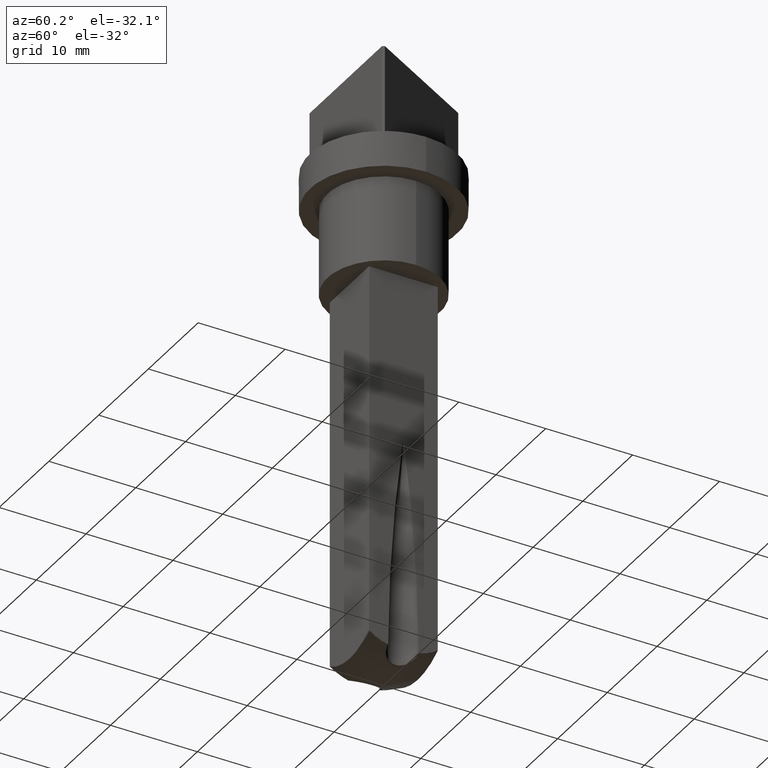
[diagram: clean part render]
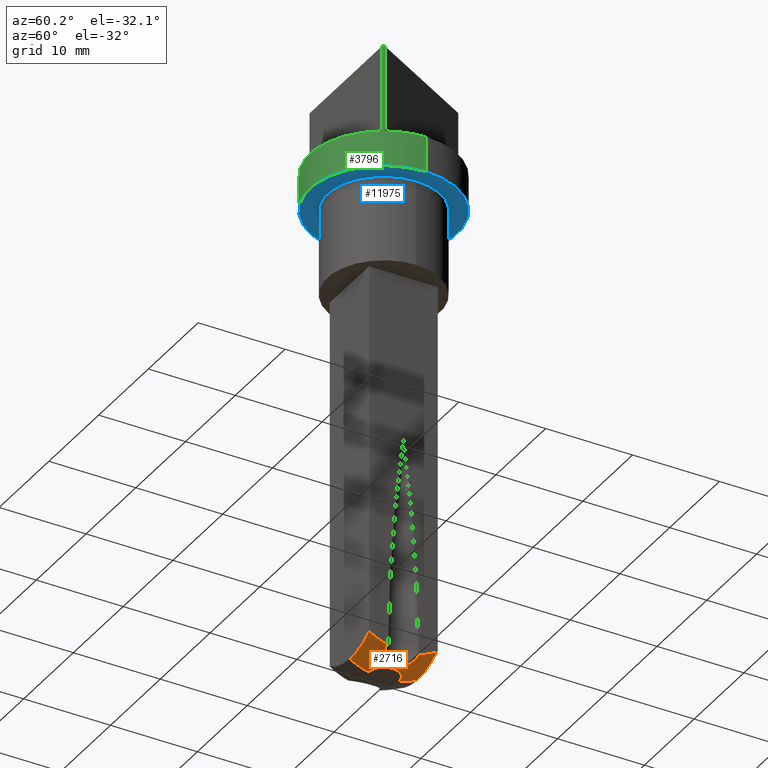
[diagram: same view with three faces highlighted in distinct colors, each labeled with its STEP entity id]
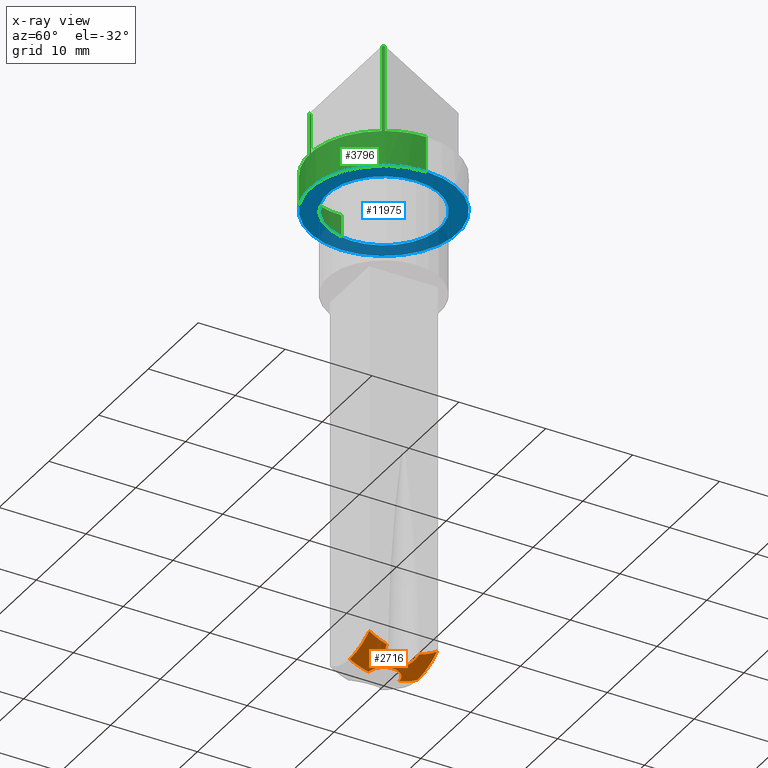
[diagram: x-ray of the same camera — body ghosted, the three highlighted faces saturated]
A machine part, auxiliary view with three faces highlighted in distinct colors.
The next image is the same camera in x-ray (body ghosted, the three faces saturated) — at least one of them is partly hidden behind the body in this view.
Their STEP definitions:

[orange] entity #2716 — the highlighted spherical surface has radius 8 mm.
#150 = CARTESIAN_POINT ( 'NONE',  ( 2.180382111232736175, -0.5106978637003862787, -51.87817661675446601 ) ) ;
#489 = ORIENTED_EDGE ( 'NONE', *, *, #5356, .T. ) ;
#516 = CIRCLE ( 'NONE', #7930, 6.985690503838126730 ) ;
#777 = VERTEX_POINT ( 'NONE', #13606 ) ;
#912 = CARTESIAN_POINT ( 'NONE',  ( 0.000000000000000000, 1.760904488448767902, -51.99754743668351153 ) ) ;
#1030 = DIRECTION ( 'NONE',  ( 1.000000000000000000, 0.000000000000000000, 0.000000000000000000 ) ) ;
#1243 = CARTESIAN_POINT ( 'NONE',  ( 2.328785630369385462, -0.8552987283188187018, -51.80042948224190980 ) ) ;
#1275 = EDGE_CURVE ( 'NONE', #777, #8591, #13905, .T. ) ;
#1290 = CARTESIAN_POINT ( 'NONE',  ( 2.858648834088266089, 1.488995507350840963, -51.51680427132578188 ) ) ;
#1334 = CARTESIAN_POINT ( 'NONE',  ( 2.857054322347832187, -1.502190820968764662, -51.51805132428641798 ) ) ;
#1505 = VERTEX_POINT ( 'NONE', #12048 ) ;
#1552 = CARTESIAN_POINT ( 'NONE',  ( 0.000000000000000000, 0.000000000000000000, -44.19375250200199190 ) ) ;
#1713 = CARTESIAN_POINT ( 'NONE',  ( 0.000000000000000000, 0.000000000000000000, -44.19375250200199190 ) ) ;
#1865 = DIRECTION ( 'NONE',  ( -0.000000000000000000, -1.000000000000000000, -0.000000000000000000 ) ) ;
#2019 = EDGE_CURVE ( 'NONE', #3425, #1505, #13856, .T. ) ;
#2080 = CARTESIAN_POINT ( 'NONE',  ( 2.138746943988174998, 0.2469376868379203338, -51.89965124968365728 ) ) ;
#2311 = DIRECTION ( 'NONE',  ( 1.000000000000000000, 0.000000000000000000, 0.000000000000000000 ) ) ;
#2360 = AXIS2_PLACEMENT_3D ( 'NONE', #7737, #4524, #2311 ) ;
#2371 = CARTESIAN_POINT ( 'NONE',  ( 2.766480473709147958, 1.414033024937340954, -51.56689301520776780 ) ) ;
#2469 = CARTESIAN_POINT ( 'NONE',  ( 2.602820174154429012, -1.252921326746087916, -51.65509874550207314 ) ) ;
#2586 = ORIENTED_EDGE ( 'NONE', *, *, #6862, .T. ) ;
#2716 = ADVANCED_FACE ( 'NONE', ( #8545 ), #5253, .T. ) ;
#2720 = CARTESIAN_POINT ( 'NONE',  ( 1.760904488448767680, 2.156486045382990820E-16, -51.99754743668351153 ) ) ;
#2984 = CARTESIAN_POINT ( 'NONE',  ( 0.000000000000000000, 3.898734177215189334, -44.19375250200199190 ) ) ;
#3013 = VERTEX_POINT ( 'NONE', #2720 ) ;
#3261 = CARTESIAN_POINT ( 'NONE',  ( 3.462106613809702527, 1.806592903148885876, -51.18052838657785486 ) ) ;
#3388 = AXIS2_PLACEMENT_3D ( 'NONE', #14183, #14135, #13974 ) ;
#3425 = VERTEX_POINT ( 'NONE', #12120 ) ;
#3427 = ORIENTED_EDGE ( 'NONE', *, *, #9251, .T. ) ;
#4012 = VERTEX_POINT ( 'NONE', #8293 ) ;
#4115 = AXIS2_PLACEMENT_3D ( 'NONE', #8945, #4488, #4398 ) ;
#4229 = EDGE_LOOP ( 'NONE', ( #6483, #13667, #9284, #2586, #11980, #9423, #13295, #3427, #489 ) ) ;
#4398 = DIRECTION ( 'NONE',  ( 0.000000000000000000, 0.000000000000000000, 1.000000000000000000 ) ) ;
#4488 = DIRECTION ( 'NONE',  ( -1.000000000000000000, -0.000000000000000000, -0.000000000000000000 ) ) ;
#4524 = DIRECTION ( 'NONE',  ( 0.000000000000000000, 0.000000000000000000, 1.000000000000000000 ) ) ;
#4584 = CARTESIAN_POINT ( 'NONE',  ( 3.464883654189576667, -1.807449611628403119, -51.17894453782694342 ) ) ;
#4633 = CARTESIAN_POINT ( 'NONE',  ( 2.513642876631042800, 1.164127101772614914, -51.70313504104576197 ) ) ;
#4682 = CARTESIAN_POINT ( 'NONE',  ( 2.226685290934127259, 0.6163339328914482218, -51.85391123496365395 ) ) ;
#5202 = DIRECTION ( 'NONE',  ( -1.000000000000000000, 0.000000000000000000, 0.000000000000000000 ) ) ;
#5253 = SPHERICAL_SURFACE ( 'NONE', #7509, 8.000000000000000000 ) ;
#5356 = EDGE_CURVE ( 'NONE', #9273, #1505, #10771, .T. ) ;
#5424 = CARTESIAN_POINT ( 'NONE',  ( 2.188706809074948190, 0.4943208755018275169, -51.87368099106187458 ) ) ;
#5526 = CARTESIAN_POINT ( 'NONE',  ( 3.898734177215189334, -3.898734177215188446, -49.99028108649361002 ) ) ;
#5701 = CARTESIAN_POINT ( 'NONE',  ( 3.898734177215188890, 1.867170734593343262, -50.92528615068059850 ) ) ;
#5751 = CARTESIAN_POINT ( 'NONE',  ( 3.679317725592032406, -1.856048930844125922, -51.05545154406537023 ) ) ;
#6483 = ORIENTED_EDGE ( 'NONE', *, *, #2019, .F. ) ;
#6518 = VERTEX_POINT ( 'NONE', #7235 ) ;
#6520 = CARTESIAN_POINT ( 'NONE',  ( 0.000000000000000000, 0.000000000000000000, -44.19375250200199190 ) ) ;
#6650 = CARTESIAN_POINT ( 'NONE',  ( 3.898734177215189334, -1.867170734593354364, -50.92528615068059850 ) ) ;
#6862 = EDGE_CURVE ( 'NONE', #9159, #4012, #14171, .T. ) ;
#6875 = CARTESIAN_POINT ( 'NONE',  ( 3.898734177215188890, 0.000000000000000000, -44.19375250200199190 ) ) ;
#7231 = CIRCLE ( 'NONE', #2360, 1.760904488448767902 ) ;
#7235 = CARTESIAN_POINT ( 'NONE',  ( 3.898734177215189334, 3.898734177215190666, -49.99028108649361002 ) ) ;
#7509 = AXIS2_PLACEMENT_3D ( 'NONE', #1713, #5202, #14108 ) ;
#7657 = CARTESIAN_POINT ( 'NONE',  ( 2.127567062258587161, -0.2618703335249066289, -51.90544013229916942 ) ) ;
#7737 = CARTESIAN_POINT ( 'NONE',  ( 0.000000000000000000, 0.000000000000000000, -51.99754743668351153 ) ) ;
#7930 = AXIS2_PLACEMENT_3D ( 'NONE', #2984, #1865, #14003 ) ;
#8066 = DIRECTION ( 'NONE',  ( 0.000000000000000000, 0.000000000000000000, 1.000000000000000000 ) ) ;
#8293 = CARTESIAN_POINT ( 'NONE',  ( 0.000000000000000000, 3.898734177215189778, -51.17944300584012041 ) ) ;
#8545 = FACE_OUTER_BOUND ( 'NONE', #4229, .T. ) ;
#8591 = VERTEX_POINT ( 'NONE', #6650 ) ;
#8711 = CARTESIAN_POINT ( 'NONE',  ( 3.678958428216413612, 1.856030718741625618, -51.05566469163883170 ) ) ;
#8744 = DIRECTION ( 'NONE',  ( 0.000000000000000000, 0.000000000000000000, -1.000000000000000000 ) ) ;
#8945 = CARTESIAN_POINT ( 'NONE',  ( 3.898734177215189334, 0.000000000000000000, -44.19375250200199190 ) ) ;
#8987 = CARTESIAN_POINT ( 'NONE',  ( 2.388202015132297795, -0.9619150511319982666, -51.76917486629923104 ) ) ;
#9038 = CARTESIAN_POINT ( 'NONE',  ( 3.898734177215189334, -1.867170734593354364, -50.92528615068059850 ) ) ;
#9087 = EDGE_CURVE ( 'NONE', #3013, #9159, #9491, .T. ) ;
#9159 = VERTEX_POINT ( 'NONE', #912 ) ;
#9194 = AXIS2_PLACEMENT_3D ( 'NONE', #11386, #10227, #8066 ) ;
#9251 = EDGE_CURVE ( 'NONE', #8591, #9273, #10358, .T. ) ;
#9273 = VERTEX_POINT ( 'NONE', #5526 ) ;
#9284 = ORIENTED_EDGE ( 'NONE', *, *, #9087, .T. ) ;
#9301 = DIRECTION ( 'NONE',  ( -1.000000000000000000, 1.224646799147353207E-16, 0.000000000000000000 ) ) ;
#9423 = ORIENTED_EDGE ( 'NONE', *, *, #13628, .T. ) ;
#9491 = CIRCLE ( 'NONE', #3388, 1.760904488448767902 ) ;
#9592 = AXIS2_PLACEMENT_3D ( 'NONE', #6875, #13406, #11318 ) ;
#9736 = EDGE_CURVE ( 'NONE', #3425, #3013, #7231, .T. ) ;
#10106 = CARTESIAN_POINT ( 'NONE',  ( 2.524757507187894046, -1.160313752101143736, -51.69675756362591557 ) ) ;
#10227 = DIRECTION ( 'NONE',  ( 0.000000000000000000, 1.000000000000000000, 0.000000000000000000 ) ) ;
#10358 = CIRCLE ( 'NONE', #4115, 6.985690503838126730 ) ;
#10409 = CIRCLE ( 'NONE', #9592, 6.985690503838126730 ) ;
#10771 = CIRCLE ( 'NONE', #9194, 6.985690503838126730 ) ;
#10938 = CARTESIAN_POINT ( 'NONE',  ( 3.050156271661538021, 1.617502458060467996, -51.41152920333833976 ) ) ;
#11318 = DIRECTION ( 'NONE',  ( 0.000000000000000000, 0.000000000000000000, 1.000000000000000000 ) ) ;
#11386 = CARTESIAN_POINT ( 'NONE',  ( 0.000000000000000000, -3.898734177215188001, -44.19375250200199190 ) ) ;
#11658 = DIRECTION ( 'NONE',  ( -1.224646799147353207E-16, -1.000000000000000000, 0.000000000000000000 ) ) ;
#11738 = AXIS2_PLACEMENT_3D ( 'NONE', #1552, #9301, #11658 ) ;
#11816 = EDGE_CURVE ( 'NONE', #4012, #6518, #516, .T. ) ;
#11980 = ORIENTED_EDGE ( 'NONE', *, *, #11816, .T. ) ;
#12048 = CARTESIAN_POINT ( 'NONE',  ( -4.774572330852970025E-16, -3.898734177215188001, -51.17944300584012041 ) ) ;
#12120 = CARTESIAN_POINT ( 'NONE',  ( -4.465824982899612627E-16, -1.760904488448767902, -51.99754743668351153 ) ) ;
#12260 = CARTESIAN_POINT ( 'NONE',  ( 3.150171057693808674, 1.671852031501773750, -51.35598556426180750 ) ) ;
#12351 = CARTESIAN_POINT ( 'NONE',  ( 2.371893988486821758, 0.9589285037936146061, -51.77785969371883112 ) ) ;
#13062 = AXIS2_PLACEMENT_3D ( 'NONE', #6520, #1030, #8744 ) ;
#13116 = CARTESIAN_POINT ( 'NONE',  ( 2.126248505399627842, 0.1212697273930086750, -51.90612385537448858 ) ) ;
#13295 = ORIENTED_EDGE ( 'NONE', *, *, #1275, .T. ) ;
#13406 = DIRECTION ( 'NONE',  ( -1.000000000000000000, -0.000000000000000000, -0.000000000000000000 ) ) ;
#13440 = CARTESIAN_POINT ( 'NONE',  ( 3.048140487968403090, -1.628118796686945702, -51.41339718595149577 ) ) ;
#13606 = CARTESIAN_POINT ( 'NONE',  ( 3.898734177215188890, 1.867170734593343262, -50.92528615068059850 ) ) ;
#13628 = EDGE_CURVE ( 'NONE', #6518, #777, #10409, .T. ) ;
#13667 = ORIENTED_EDGE ( 'NONE', *, *, #9736, .T. ) ;
#13856 = CIRCLE ( 'NONE', #11738, 8.000000000000000000 ) ;
#13905 = B_SPLINE_CURVE_WITH_KNOTS ( 'NONE', 3,
 ( #5701, #8711, #3261, #12260, #10938, #1290, #2371, #4633, #12351, #4682, #5424, #2080, #13116, #7657, #150, #1243, #8987, #10106, #2469, #1334, #13440, #4584, #5751, #9038 ),
 .UNSPECIFIED., .F., .F.,
 ( 4, 2, 2, 2, 2, 2, 2, 2, 2, 2, 2, 4 ),
 ( 0.000000000000000000, 0.0007595803590064422383, 0.001139370538509658533, 0.001519160718012875153, 0.002278741077019307525, 0.002658531256522525879, 0.003038321436025744234, 0.003797901795032180942, 0.004177691974535396695, 0.004557482154038612447, 0.005317062513045043085, 0.006076642872051474589 ),
 .UNSPECIFIED. ) ;
#13974 = DIRECTION ( 'NONE',  ( 1.000000000000000000, 0.000000000000000000, 0.000000000000000000 ) ) ;
#14003 = DIRECTION ( 'NONE',  ( 0.000000000000000000, 0.000000000000000000, -1.000000000000000000 ) ) ;
#14108 = DIRECTION ( 'NONE',  ( 0.000000000000000000, 1.000000000000000000, 0.000000000000000000 ) ) ;
#14135 = DIRECTION ( 'NONE',  ( 0.000000000000000000, 0.000000000000000000, 1.000000000000000000 ) ) ;
#14171 = CIRCLE ( 'NONE', #13062, 8.000000000000000000 ) ;
#14183 = CARTESIAN_POINT ( 'NONE',  ( 0.000000000000000000, 0.000000000000000000, -51.99754743668351153 ) ) ;

[blue] entity #11975 — the highlighted planar face has unit normal (0, 0, -1).
#409 = VERTEX_POINT ( 'NONE', #5009 ) ;
#773 = CARTESIAN_POINT ( 'NONE',  ( -8.499999999999996447, 0.000000000000000000, 2.900000000000001243 ) ) ;
#896 = VERTEX_POINT ( 'NONE', #11709 ) ;
#1481 = DIRECTION ( 'NONE',  ( 1.000000000000000000, 0.000000000000000000, 0.000000000000000000 ) ) ;
#1675 = CIRCLE ( 'NONE', #7536, 8.499999999999996447 ) ;
#1718 = EDGE_CURVE ( 'NONE', #8743, #896, #4394, .T. ) ;
#2209 = EDGE_CURVE ( 'NONE', #10375, #409, #11649, .T. ) ;
#2269 = EDGE_LOOP ( 'NONE', ( #13894, #2746 ) ) ;
#2746 = ORIENTED_EDGE ( 'NONE', *, *, #1718, .T. ) ;
#2996 = ORIENTED_EDGE ( 'NONE', *, *, #2209, .F. ) ;
#3007 = DIRECTION ( 'NONE',  ( 1.000000000000000000, 0.000000000000000000, 0.000000000000000000 ) ) ;
#4375 = DIRECTION ( 'NONE',  ( 0.000000000000000000, 0.000000000000000000, -1.000000000000000000 ) ) ;
#4394 = CIRCLE ( 'NONE', #7107, 6.500000000000000000 ) ;
#4670 = EDGE_CURVE ( 'NONE', #409, #10375, #1675, .T. ) ;
#4860 = CARTESIAN_POINT ( 'NONE',  ( 0.000000000000000000, 0.000000000000000000, 2.900000000000000799 ) ) ;
#5009 = CARTESIAN_POINT ( 'NONE',  ( 8.499999999999996447, 1.040949779275249943E-15, 2.900000000000001243 ) ) ;
#5342 = CARTESIAN_POINT ( 'NONE',  ( -6.500000000000000000, 7.960204194457795477E-16, 2.900000000000000799 ) ) ;
#6048 = DIRECTION ( 'NONE',  ( 1.000000000000000000, 0.000000000000000000, 0.000000000000000000 ) ) ;
#7107 = AXIS2_PLACEMENT_3D ( 'NONE', #4860, #8115, #1481 ) ;
#7245 = EDGE_LOOP ( 'NONE', ( #2996, #7586 ) ) ;
#7536 = AXIS2_PLACEMENT_3D ( 'NONE', #12650, #10401, #6048 ) ;
#7582 = FACE_OUTER_BOUND ( 'NONE', #7245, .T. ) ;
#7584 = PLANE ( 'NONE',  #12085 ) ;
#7586 = ORIENTED_EDGE ( 'NONE', *, *, #4670, .F. ) ;
#8115 = DIRECTION ( 'NONE',  ( -0.000000000000000000, -0.000000000000000000, 1.000000000000000000 ) ) ;
#8222 = AXIS2_PLACEMENT_3D ( 'NONE', #9959, #13388, #10137 ) ;
#8743 = VERTEX_POINT ( 'NONE', #5342 ) ;
#9777 = CARTESIAN_POINT ( 'NONE',  ( 0.000000000000000000, 0.000000000000000000, 2.900000000000001243 ) ) ;
#9959 = CARTESIAN_POINT ( 'NONE',  ( 0.000000000000000000, 0.000000000000000000, 2.900000000000000799 ) ) ;
#10007 = AXIS2_PLACEMENT_3D ( 'NONE', #9777, #10884, #3007 ) ;
#10137 = DIRECTION ( 'NONE',  ( 1.000000000000000000, 0.000000000000000000, 0.000000000000000000 ) ) ;
#10375 = VERTEX_POINT ( 'NONE', #773 ) ;
#10401 = DIRECTION ( 'NONE',  ( -0.000000000000000000, -0.000000000000000000, 1.000000000000000000 ) ) ;
#10884 = DIRECTION ( 'NONE',  ( -0.000000000000000000, -0.000000000000000000, 1.000000000000000000 ) ) ;
#11649 = CIRCLE ( 'NONE', #10007, 8.499999999999996447 ) ;
#11709 = CARTESIAN_POINT ( 'NONE',  ( 6.500000000000000000, 0.000000000000000000, 2.900000000000000799 ) ) ;
#11975 = ADVANCED_FACE ( 'NONE', ( #12273, #7582 ), #7584, .T. ) ;
#12055 = DIRECTION ( 'NONE',  ( -1.000000000000000000, 0.000000000000000000, -0.000000000000000000 ) ) ;
#12085 = AXIS2_PLACEMENT_3D ( 'NONE', #14256, #4375, #12055 ) ;
#12273 = FACE_BOUND ( 'NONE', #2269, .T. ) ;
#12650 = CARTESIAN_POINT ( 'NONE',  ( 0.000000000000000000, 0.000000000000000000, 2.900000000000001243 ) ) ;
#13388 = DIRECTION ( 'NONE',  ( -0.000000000000000000, -0.000000000000000000, 1.000000000000000000 ) ) ;
#13634 = CIRCLE ( 'NONE', #8222, 6.500000000000000000 ) ;
#13894 = ORIENTED_EDGE ( 'NONE', *, *, #14018, .T. ) ;
#14018 = EDGE_CURVE ( 'NONE', #896, #8743, #13634, .T. ) ;
#14256 = CARTESIAN_POINT ( 'NONE',  ( 0.000000000000000000, 8.499999999999996447, 2.900000000000000799 ) ) ;

[green] entity #3796 — the highlighted cylindrical surface (partial cylindrical patch) has radius 8.5 mm, axis along (-0, -0, -1).
#267 = EDGE_CURVE ( 'NONE', #13000, #11024, #3907, .T. ) ;
#409 = VERTEX_POINT ( 'NONE', #5009 ) ;
#474 = CARTESIAN_POINT ( 'NONE',  ( -7.431194021884498291, -4.126421622799602673, 17.00000000000000000 ) ) ;
#595 = CARTESIAN_POINT ( 'NONE',  ( 0.000000000000000000, 0.000000000000000000, 17.00000000000000000 ) ) ;
#773 = CARTESIAN_POINT ( 'NONE',  ( -8.499999999999996447, 0.000000000000000000, 2.900000000000001243 ) ) ;
#883 = EDGE_CURVE ( 'NONE', #8469, #6393, #13543, .T. ) ;
#889 = LINE ( 'NONE', #11414, #3500 ) ;
#1009 = EDGE_CURVE ( 'NONE', #10224, #3924, #5460, .T. ) ;
#1404 = VERTEX_POINT ( 'NONE', #8533 ) ;
#1447 = AXIS2_PLACEMENT_3D ( 'NONE', #595, #2924, #5036 ) ;
#1586 = LINE ( 'NONE', #10329, #7135 ) ;
#1763 = FACE_OUTER_BOUND ( 'NONE', #7748, .T. ) ;
#1915 = VERTEX_POINT ( 'NONE', #12337 ) ;
#2005 = ORIENTED_EDGE ( 'NONE', *, *, #1009, .F. ) ;
#2084 = CARTESIAN_POINT ( 'NONE',  ( -7.289182963012112104, -4.372391992003230143, 22.00000000000000000 ) ) ;
#2209 = EDGE_CURVE ( 'NONE', #10375, #409, #11649, .T. ) ;
#2216 = DIRECTION ( 'NONE',  ( 1.000000000000000000, 0.000000000000000000, 0.000000000000000000 ) ) ;
#2724 = CARTESIAN_POINT ( 'NONE',  ( 0.000000000000000000, 0.000000000000000000, 17.00000000000000000 ) ) ;
#2738 = CARTESIAN_POINT ( 'NONE',  ( -7.289182963012112104, -4.372391992003230143, 17.00000000000000000 ) ) ;
#2903 = ORIENTED_EDGE ( 'NONE', *, *, #7192, .T. ) ;
#2924 = DIRECTION ( 'NONE',  ( -0.000000000000000000, -0.000000000000000000, -1.000000000000000000 ) ) ;
#3007 = DIRECTION ( 'NONE',  ( 1.000000000000000000, 0.000000000000000000, 0.000000000000000000 ) ) ;
#3122 = DIRECTION ( 'NONE',  ( 1.000000000000000000, 0.000000000000000000, 0.000000000000000000 ) ) ;
#3272 = EDGE_CURVE ( 'NONE', #10949, #1915, #5433, .T. ) ;
#3500 = VECTOR ( 'NONE', #4887, 1000.000000000000000 ) ;
#3625 = ORIENTED_EDGE ( 'NONE', *, *, #883, .T. ) ;
#3785 = LINE ( 'NONE', #2084, #8818 ) ;
#3796 = ADVANCED_FACE ( 'NONE', ( #1763 ), #11785, .T. ) ;
#3907 = CIRCLE ( 'NONE', #12557, 8.500000000000000000 ) ;
#3924 = VERTEX_POINT ( 'NONE', #11326 ) ;
#4194 = DIRECTION ( 'NONE',  ( 0.000000000000000000, 0.000000000000000000, 1.000000000000000000 ) ) ;
#4218 = DIRECTION ( 'NONE',  ( 0.000000000000000000, 0.000000000000000000, 1.000000000000000000 ) ) ;
#4270 = CARTESIAN_POINT ( 'NONE',  ( 0.000000000000000000, 0.000000000000000000, 7.000000000000000000 ) ) ;
#4348 = CIRCLE ( 'NONE', #6553, 8.500000000000000000 ) ;
#4613 = AXIS2_PLACEMENT_3D ( 'NONE', #4270, #4218, #3122 ) ;
#4713 = EDGE_CURVE ( 'NONE', #1404, #10949, #12388, .T. ) ;
#4887 = DIRECTION ( 'NONE',  ( -0.000000000000000000, -0.000000000000000000, -1.000000000000000000 ) ) ;
#4933 = CARTESIAN_POINT ( 'NONE',  ( -8.500000000000000000, 0.000000000000000000, 7.000000000000000000 ) ) ;
#5009 = CARTESIAN_POINT ( 'NONE',  ( 8.499999999999996447, 1.040949779275249943E-15, 2.900000000000001243 ) ) ;
#5036 = DIRECTION ( 'NONE',  ( -1.000000000000000000, 0.000000000000000000, 0.000000000000000000 ) ) ;
#5340 = EDGE_CURVE ( 'NONE', #13000, #1404, #6088, .T. ) ;
#5349 = CARTESIAN_POINT ( 'NONE',  ( 7.431194021884501844, -4.126421622799598232, 7.000000000000000000 ) ) ;
#5371 = CARTESIAN_POINT ( 'NONE',  ( 0.000000000000000000, 0.000000000000000000, 7.000000000000000000 ) ) ;
#5433 = LINE ( 'NONE', #9372, #13507 ) ;
#5460 = CIRCLE ( 'NONE', #4613, 8.500000000000000000 ) ;
#5631 = CARTESIAN_POINT ( 'NONE',  ( 7.289182963012113881, -4.372391992003228367, 17.00000000000000000 ) ) ;
#5693 = DIRECTION ( 'NONE',  ( 0.000000000000000000, 0.000000000000000000, 1.000000000000000000 ) ) ;
#5888 = EDGE_CURVE ( 'NONE', #6393, #3924, #889, .T. ) ;
#6033 = AXIS2_PLACEMENT_3D ( 'NONE', #11101, #13661, #9125 ) ;
#6088 = LINE ( 'NONE', #12296, #6267 ) ;
#6267 = VECTOR ( 'NONE', #5693, 1000.000000000000000 ) ;
#6393 = VERTEX_POINT ( 'NONE', #474 ) ;
#6553 = AXIS2_PLACEMENT_3D ( 'NONE', #14121, #4194, #2216 ) ;
#6688 = VERTEX_POINT ( 'NONE', #11491 ) ;
#6927 = ORIENTED_EDGE ( 'NONE', *, *, #9123, .T. ) ;
#7113 = CARTESIAN_POINT ( 'NONE',  ( 8.500000000000000000, 1.040949779275250140E-15, 7.000000000000000000 ) ) ;
#7135 = VECTOR ( 'NONE', #13529, 1000.000000000000000 ) ;
#7192 = EDGE_CURVE ( 'NONE', #10224, #10375, #11947, .T. ) ;
#7263 = ORIENTED_EDGE ( 'NONE', *, *, #5888, .T. ) ;
#7341 = DIRECTION ( 'NONE',  ( -0.000000000000000000, -0.000000000000000000, -1.000000000000000000 ) ) ;
#7748 = EDGE_LOOP ( 'NONE', ( #9004, #11398, #13395, #9758, #12419, #10618, #6927, #3625, #7263, #2005, #2903, #8043 ) ) ;
#8043 = ORIENTED_EDGE ( 'NONE', *, *, #2209, .T. ) ;
#8385 = CARTESIAN_POINT ( 'NONE',  ( -8.500000000000000000, 0.000000000000000000, 7.000000000000000000 ) ) ;
#8469 = VERTEX_POINT ( 'NONE', #2738 ) ;
#8533 = CARTESIAN_POINT ( 'NONE',  ( 7.431194021884501844, -4.126421622799598232, 17.00000000000000000 ) ) ;
#8818 = VECTOR ( 'NONE', #9628, 1000.000000000000000 ) ;
#9004 = ORIENTED_EDGE ( 'NONE', *, *, #12813, .F. ) ;
#9123 = EDGE_CURVE ( 'NONE', #6688, #8469, #3785, .T. ) ;
#9125 = DIRECTION ( 'NONE',  ( -1.000000000000000000, 0.000000000000000000, 0.000000000000000000 ) ) ;
#9372 = CARTESIAN_POINT ( 'NONE',  ( 7.289182963012113881, -4.372391992003228367, 22.00000000000000000 ) ) ;
#9628 = DIRECTION ( 'NONE',  ( 0.000000000000000000, 0.000000000000000000, 1.000000000000000000 ) ) ;
#9758 = ORIENTED_EDGE ( 'NONE', *, *, #4713, .T. ) ;
#9777 = CARTESIAN_POINT ( 'NONE',  ( 0.000000000000000000, 0.000000000000000000, 2.900000000000001243 ) ) ;
#9890 = VECTOR ( 'NONE', #12790, 1000.000000000000000 ) ;
#9948 = AXIS2_PLACEMENT_3D ( 'NONE', #2724, #13923, #11741 ) ;
#10007 = AXIS2_PLACEMENT_3D ( 'NONE', #9777, #10884, #3007 ) ;
#10013 = DIRECTION ( 'NONE',  ( 0.000000000000000000, 0.000000000000000000, 1.000000000000000000 ) ) ;
#10224 = VERTEX_POINT ( 'NONE', #4933 ) ;
#10329 = CARTESIAN_POINT ( 'NONE',  ( 8.500000000000000000, 1.040949779275250140E-15, 7.000000000000000000 ) ) ;
#10375 = VERTEX_POINT ( 'NONE', #773 ) ;
#10618 = ORIENTED_EDGE ( 'NONE', *, *, #13901, .F. ) ;
#10884 = DIRECTION ( 'NONE',  ( -0.000000000000000000, -0.000000000000000000, 1.000000000000000000 ) ) ;
#10949 = VERTEX_POINT ( 'NONE', #5631 ) ;
#11024 = VERTEX_POINT ( 'NONE', #7113 ) ;
#11101 = CARTESIAN_POINT ( 'NONE',  ( 0.000000000000000000, 0.000000000000000000, 7.000000000000000000 ) ) ;
#11326 = CARTESIAN_POINT ( 'NONE',  ( -7.431194021884500067, -4.126421622799602673, 7.000000000000000000 ) ) ;
#11398 = ORIENTED_EDGE ( 'NONE', *, *, #267, .F. ) ;
#11414 = CARTESIAN_POINT ( 'NONE',  ( -7.431194021884498291, -4.126421622799601785, 22.00000000000000000 ) ) ;
#11491 = CARTESIAN_POINT ( 'NONE',  ( -7.289182963012113881, -4.372391992003231032, 7.000000000000000000 ) ) ;
#11649 = CIRCLE ( 'NONE', #10007, 8.499999999999996447 ) ;
#11741 = DIRECTION ( 'NONE',  ( -1.000000000000000000, 0.000000000000000000, 0.000000000000000000 ) ) ;
#11785 = CYLINDRICAL_SURFACE ( 'NONE', #6033, 8.500000000000000000 ) ;
#11947 = LINE ( 'NONE', #8385, #9890 ) ;
#12169 = DIRECTION ( 'NONE',  ( 1.000000000000000000, 0.000000000000000000, 0.000000000000000000 ) ) ;
#12296 = CARTESIAN_POINT ( 'NONE',  ( 7.431194021884500955, -4.126421622799598232, 22.00000000000000000 ) ) ;
#12337 = CARTESIAN_POINT ( 'NONE',  ( 7.289182963012113881, -4.372391992003228367, 7.000000000000000000 ) ) ;
#12388 = CIRCLE ( 'NONE', #9948, 8.500000000000000000 ) ;
#12419 = ORIENTED_EDGE ( 'NONE', *, *, #3272, .T. ) ;
#12557 = AXIS2_PLACEMENT_3D ( 'NONE', #5371, #10013, #12169 ) ;
#12790 = DIRECTION ( 'NONE',  ( -0.000000000000000000, -0.000000000000000000, -1.000000000000000000 ) ) ;
#12813 = EDGE_CURVE ( 'NONE', #11024, #409, #1586, .T. ) ;
#13000 = VERTEX_POINT ( 'NONE', #5349 ) ;
#13395 = ORIENTED_EDGE ( 'NONE', *, *, #5340, .T. ) ;
#13507 = VECTOR ( 'NONE', #7341, 1000.000000000000000 ) ;
#13529 = DIRECTION ( 'NONE',  ( -0.000000000000000000, -0.000000000000000000, -1.000000000000000000 ) ) ;
#13543 = CIRCLE ( 'NONE', #1447, 8.500000000000000000 ) ;
#13661 = DIRECTION ( 'NONE',  ( -0.000000000000000000, -0.000000000000000000, -1.000000000000000000 ) ) ;
#13901 = EDGE_CURVE ( 'NONE', #6688, #1915, #4348, .T. ) ;
#13923 = DIRECTION ( 'NONE',  ( -0.000000000000000000, -0.000000000000000000, -1.000000000000000000 ) ) ;
#14121 = CARTESIAN_POINT ( 'NONE',  ( 0.000000000000000000, 0.000000000000000000, 7.000000000000000000 ) ) ;